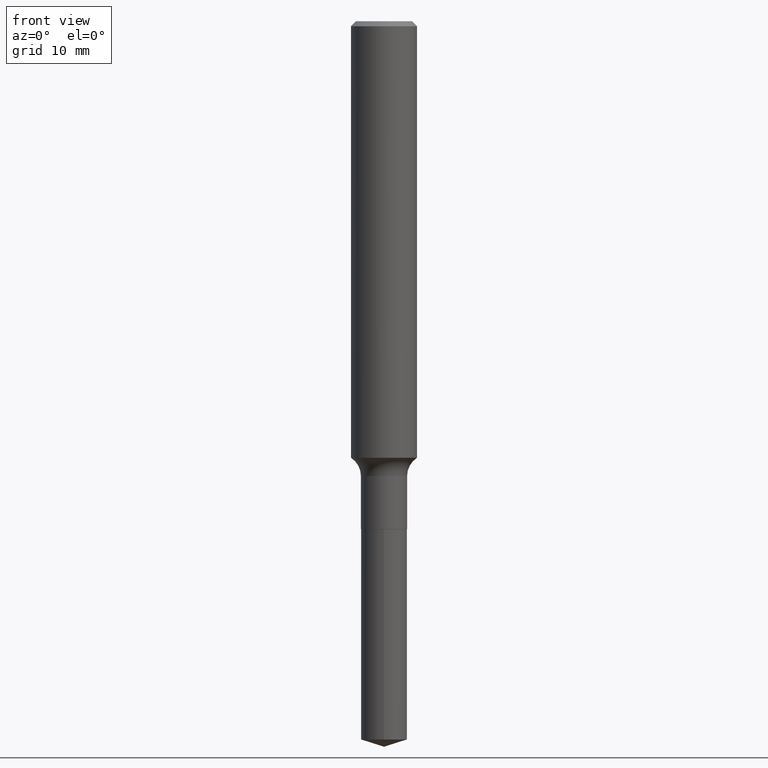
[diagram: clean part render]
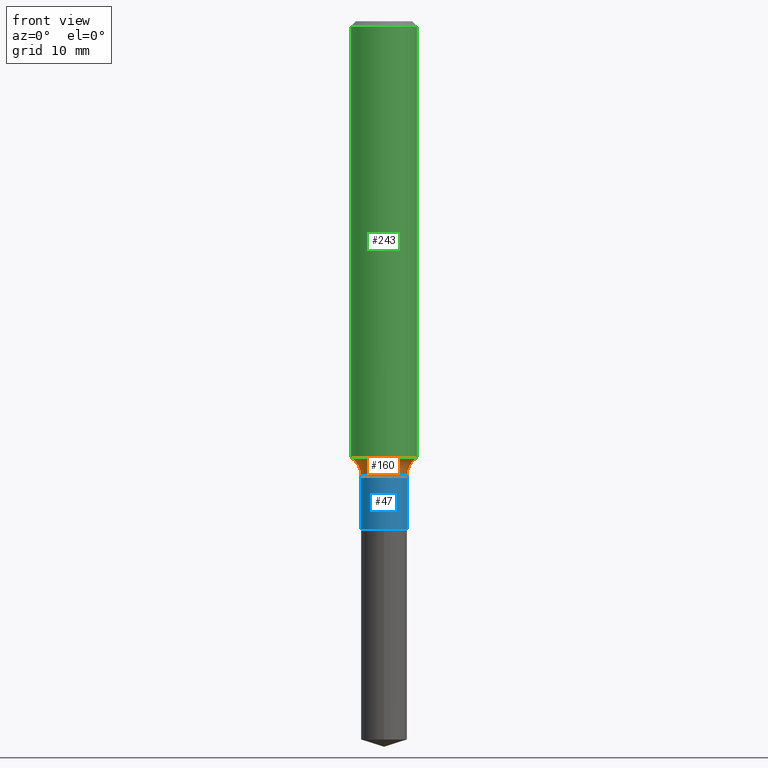
[diagram: same view with three faces highlighted in distinct colors, each labeled with its STEP entity id]
A machine part, front view with three faces highlighted in distinct colors.
Their STEP definitions:

[orange] entity #160 — the highlighted toroidal blend (fillet) surface has major radius 4.0818 mm and minor (blend) radius 1.9812 mm.
#3 = CIRCLE ( 'NONE', #130, 0.08269999999999998186 ) ;
#9 = AXIS2_PLACEMENT_3D ( 'NONE', #462, #126, #275 ) ;
#11 = EDGE_CURVE ( 'NONE', #90, #464, #86, .T. ) ;
#18 = VERTEX_POINT ( 'NONE', #123 ) ;
#39 = DIRECTION ( 'NONE',  ( 1.000000000000000000, -6.982962677686270655E-15, 0.000000000000000000 ) ) ;
#50 = CARTESIAN_POINT ( 'NONE',  ( 3.823149527577877642E-29, -5.458444285767998317E-15, -1.563360578514957355 ) ) ;
#51 = EDGE_LOOP ( 'NONE', ( #365, #85, #129, #170 ) ) ;
#54 = EDGE_CURVE ( 'NONE', #90, #18, #187, .T. ) ;
#61 = DIRECTION ( 'NONE',  ( -2.445468806185136597E-29, 3.491481338843145583E-15, 1.000000000000000000 ) ) ;
#69 = DIRECTION ( 'NONE',  ( 1.000000000000000000, -6.982962677686267499E-15, 4.883557194083113462E-29 ) ) ;
#75 = CARTESIAN_POINT ( 'NONE',  ( 0.1181000000000001354, -6.283132178002746580E-15, -1.563360578514957355 ) ) ;
#85 = ORIENTED_EDGE ( 'NONE', *, *, #54, .T. ) ;
#86 = CIRCLE ( 'NONE', #232, 0.1181000000000001632 ) ;
#90 = VERTEX_POINT ( 'NONE', #217 ) ;
#121 = DIRECTION ( 'NONE',  ( -6.982962677686266711E-15, -1.000000000000000000, 3.491481338843145583E-15 ) ) ;
#123 = CARTESIAN_POINT ( 'NONE',  ( -0.08269999999999998186, -5.430123819089499970E-15, -1.628699999999999815 ) ) ;
#126 = DIRECTION ( 'NONE',  ( 7.105427357601001859E-15, 1.000000000000000000, -3.491481338843145583E-15 ) ) ;
#129 = ORIENTED_EDGE ( 'NONE', *, *, #183, .T. ) ;
#130 = AXIS2_PLACEMENT_3D ( 'NONE', #320, #61, #475 ) ;
#140 = CIRCLE ( 'NONE', #304, 0.07799999999999999989 ) ;
#160 = ADVANCED_FACE ( 'NONE', ( #409 ), #239, .F. ) ;
#170 = ORIENTED_EDGE ( 'NONE', *, *, #325, .F. ) ;
#171 = AXIS2_PLACEMENT_3D ( 'NONE', #332, #216, #69 ) ;
#183 = EDGE_CURVE ( 'NONE', #18, #286, #3, .T. ) ;
#187 = CIRCLE ( 'NONE', #9, 0.07799999999999999989 ) ;
#208 = DIRECTION ( 'NONE',  ( -2.445468806185136597E-29, 3.491481338843145583E-15, 1.000000000000000000 ) ) ;
#216 = DIRECTION ( 'NONE',  ( -2.445468806185136597E-29, 3.491481338843145583E-15, 1.000000000000000000 ) ) ;
#217 = CARTESIAN_POINT ( 'NONE',  ( -0.1181000000000001354, -4.619293314835319331E-15, -1.563360578514957355 ) ) ;
#232 = AXIS2_PLACEMENT_3D ( 'NONE', #50, #208, #463 ) ;
#239 = TOROIDAL_SURFACE ( 'NONE', #171, 0.1607000000000000095, 0.07799999999999999989 ) ;
#275 = DIRECTION ( 'NONE',  ( -1.000000000000000000, 7.105427357600997914E-15, 0.000000000000000000 ) ) ;
#286 = VERTEX_POINT ( 'NONE', #361 ) ;
#304 = AXIS2_PLACEMENT_3D ( 'NONE', #457, #121, #39 ) ;
#320 = CARTESIAN_POINT ( 'NONE',  ( 3.982935044633731907E-29, -5.686575656573830550E-15, -1.628699999999999815 ) ) ;
#325 = EDGE_CURVE ( 'NONE', #464, #286, #140, .T. ) ;
#332 = CARTESIAN_POINT ( 'NONE',  ( 3.982935044633731907E-29, -5.686575656573830550E-15, -1.628699999999999815 ) ) ;
#361 = CARTESIAN_POINT ( 'NONE',  ( 0.08269999999999998186, -6.264066670018484441E-15, -1.628699999999999815 ) ) ;
#365 = ORIENTED_EDGE ( 'NONE', *, *, #11, .F. ) ;
#409 = FACE_OUTER_BOUND ( 'NONE', #51, .T. ) ;
#457 = CARTESIAN_POINT ( 'NONE',  ( 0.1607000000000000095, -6.808737758878013276E-15, -1.628699999999999815 ) ) ;
#462 = CARTESIAN_POINT ( 'NONE',  ( -0.1607000000000000095, -4.544733480207349878E-15, -1.628699999999999815 ) ) ;
#463 = DIRECTION ( 'NONE',  ( 1.000000000000000000, -6.982962677686263555E-15, 0.000000000000000000 ) ) ;
#464 = VERTEX_POINT ( 'NONE', #75 ) ;
#475 = DIRECTION ( 'NONE',  ( 1.000000000000000000, -6.982962677686262766E-15, 0.000000000000000000 ) ) ;

[blue] entity #47 — the highlighted cylindrical surface (edge-blend (fillet) strip) has radius 2.1006 mm, axis along (-0, 0, 1).
#3 = CIRCLE ( 'NONE', #130, 0.08269999999999998186 ) ;
#8 = DIRECTION ( 'NONE',  ( -2.445468806185136597E-29, 3.491481338843145583E-15, 1.000000000000000000 ) ) ;
#13 = DIRECTION ( 'NONE',  ( -2.445468806185136877E-29, 3.491481338843145188E-15, 1.000000000000000000 ) ) ;
#18 = VERTEX_POINT ( 'NONE', #123 ) ;
#33 = CIRCLE ( 'NONE', #81, 0.08269999999999998186 ) ;
#45 = CYLINDRICAL_SURFACE ( 'NONE', #124, 0.08269999999999998186 ) ;
#47 = ADVANCED_FACE ( 'NONE', ( #234 ), #45, .T. ) ;
#49 = EDGE_LOOP ( 'NONE', ( #292, #388, #396, #459 ) ) ;
#61 = DIRECTION ( 'NONE',  ( -2.445468806185136597E-29, 3.491481338843145583E-15, 1.000000000000000000 ) ) ;
#81 = AXIS2_PLACEMENT_3D ( 'NONE', #128, #155, #280 ) ;
#123 = CARTESIAN_POINT ( 'NONE',  ( -0.08269999999999998186, -5.430123819089499970E-15, -1.628699999999999815 ) ) ;
#124 = AXIS2_PLACEMENT_3D ( 'NONE', #200, #8, #305 ) ;
#128 = CARTESIAN_POINT ( 'NONE',  ( 4.446840477167052112E-29, -6.348909666552375037E-15, -1.818400000000000016 ) ) ;
#130 = AXIS2_PLACEMENT_3D ( 'NONE', #320, #61, #475 ) ;
#155 = DIRECTION ( 'NONE',  ( -2.445468806185136597E-29, 3.491481338843145583E-15, 1.000000000000000000 ) ) ;
#183 = EDGE_CURVE ( 'NONE', #18, #286, #3, .T. ) ;
#200 = CARTESIAN_POINT ( 'NONE',  ( 0.000000000000000000, 0.000000000000000000, 0.000000000000000000 ) ) ;
#201 = VERTEX_POINT ( 'NONE', #257 ) ;
#218 = EDGE_CURVE ( 'NONE', #201, #286, #483, .T. ) ;
#234 = FACE_OUTER_BOUND ( 'NONE', #49, .T. ) ;
#257 = CARTESIAN_POINT ( 'NONE',  ( 0.08269999999999998186, -6.926400679997028928E-15, -1.818400000000000016 ) ) ;
#280 = DIRECTION ( 'NONE',  ( 1.000000000000000000, -6.982962677686262766E-15, 0.000000000000000000 ) ) ;
#281 = VECTOR ( 'NONE', #13, 39.37007874015748143 ) ;
#286 = VERTEX_POINT ( 'NONE', #361 ) ;
#292 = ORIENTED_EDGE ( 'NONE', *, *, #394, .F. ) ;
#305 = DIRECTION ( 'NONE',  ( 1.000000000000000000, -6.982962677686267499E-15, 4.876176775795936353E-29 ) ) ;
#307 = CARTESIAN_POINT ( 'NONE',  ( -0.08269999999999998186, 5.876188424736027248E-16, -4.067959319640806203E-30 ) ) ;
#312 = DIRECTION ( 'NONE',  ( -2.445468806185136877E-29, 3.491481338843145188E-15, 1.000000000000000000 ) ) ;
#320 = CARTESIAN_POINT ( 'NONE',  ( 3.982935044633731907E-29, -5.686575656573830550E-15, -1.628699999999999815 ) ) ;
#346 = CARTESIAN_POINT ( 'NONE',  ( 0.08269999999999998186, -5.774910134446541868E-16, 4.032598193583238570E-30 ) ) ;
#361 = CARTESIAN_POINT ( 'NONE',  ( 0.08269999999999998186, -6.264066670018484441E-15, -1.628699999999999815 ) ) ;
#378 = CARTESIAN_POINT ( 'NONE',  ( -0.08269999999999998186, -5.430123819089499970E-15, -1.818400000000000016 ) ) ;
#379 = LINE ( 'NONE', #307, #281 ) ;
#388 = ORIENTED_EDGE ( 'NONE', *, *, #492, .T. ) ;
#393 = VERTEX_POINT ( 'NONE', #378 ) ;
#394 = EDGE_CURVE ( 'NONE', #393, #18, #379, .T. ) ;
#396 = ORIENTED_EDGE ( 'NONE', *, *, #218, .T. ) ;
#427 = VECTOR ( 'NONE', #312, 39.37007874015748143 ) ;
#459 = ORIENTED_EDGE ( 'NONE', *, *, #183, .F. ) ;
#475 = DIRECTION ( 'NONE',  ( 1.000000000000000000, -6.982962677686262766E-15, 0.000000000000000000 ) ) ;
#483 = LINE ( 'NONE', #346, #427 ) ;
#492 = EDGE_CURVE ( 'NONE', #393, #201, #33, .T. ) ;

[green] entity #243 — the highlighted cylindrical surface (edge-blend (fillet) strip) has radius 2.9997 mm, axis along (-0, 0, 1).
#11 = EDGE_CURVE ( 'NONE', #90, #464, #86, .T. ) ;
#38 = EDGE_CURVE ( 'NONE', #464, #349, #424, .T. ) ;
#48 = DIRECTION ( 'NONE',  ( 1.000000000000000000, -6.982962677686266711E-15, 0.000000000000000000 ) ) ;
#50 = CARTESIAN_POINT ( 'NONE',  ( 3.823149527577877642E-29, -5.458444285767998317E-15, -1.563360578514957355 ) ) ;
#67 = CARTESIAN_POINT ( 'NONE',  ( -0.1181000000000000799, 8.391509709326788873E-16, -5.809262341591047988E-30 ) ) ;
#73 = CARTESIAN_POINT ( 'NONE',  ( 0.1180999999999999966, -8.865394841523547570E-16, -0.01771500000000010913 ) ) ;
#75 = CARTESIAN_POINT ( 'NONE',  ( 0.1181000000000001354, -6.283132178002746580E-15, -1.563360578514957355 ) ) ;
#78 = EDGE_CURVE ( 'NONE', #90, #152, #262, .T. ) ;
#80 = VECTOR ( 'NONE', #410, 39.37007874015748143 ) ;
#83 = DIRECTION ( 'NONE',  ( -2.445468806185136877E-29, 3.491481338843145188E-15, 1.000000000000000000 ) ) ;
#86 = CIRCLE ( 'NONE', #232, 0.1181000000000001632 ) ;
#90 = VERTEX_POINT ( 'NONE', #217 ) ;
#91 = FACE_OUTER_BOUND ( 'NONE', #362, .T. ) ;
#95 = DIRECTION ( 'NONE',  ( -2.445468806185136597E-29, 3.491481338843145583E-15, 1.000000000000000000 ) ) ;
#125 = CIRCLE ( 'NONE', #401, 0.1180999999999999966 ) ;
#152 = VERTEX_POINT ( 'NONE', #253 ) ;
#162 = CARTESIAN_POINT ( 'NONE',  ( 0.000000000000000000, 0.000000000000000000, 0.000000000000000000 ) ) ;
#208 = DIRECTION ( 'NONE',  ( -2.445468806185136597E-29, 3.491481338843145583E-15, 1.000000000000000000 ) ) ;
#212 = VECTOR ( 'NONE', #83, 39.37007874015748143 ) ;
#214 = AXIS2_PLACEMENT_3D ( 'NONE', #162, #95, #397 ) ;
#217 = CARTESIAN_POINT ( 'NONE',  ( -0.1181000000000001354, -4.619293314835319331E-15, -1.563360578514957355 ) ) ;
#230 = DIRECTION ( 'NONE',  ( -2.445468806185136597E-29, 3.491481338843145583E-15, 1.000000000000000000 ) ) ;
#232 = AXIS2_PLACEMENT_3D ( 'NONE', #50, #208, #463 ) ;
#243 = ADVANCED_FACE ( 'NONE', ( #91 ), #453, .T. ) ;
#244 = ORIENTED_EDGE ( 'NONE', *, *, #376, .F. ) ;
#253 = CARTESIAN_POINT ( 'NONE',  ( -0.1180999999999999966, -1.920996967910122878E-15, -0.01771500000000010913 ) ) ;
#262 = LINE ( 'NONE', #67, #80 ) ;
#265 = ORIENTED_EDGE ( 'NONE', *, *, #11, .T. ) ;
#278 = CARTESIAN_POINT ( 'NONE',  ( 0.1181000000000000799, -8.246878922347486570E-16, 5.758764772215004644E-30 ) ) ;
#282 = ORIENTED_EDGE ( 'NONE', *, *, #78, .F. ) ;
#313 = ORIENTED_EDGE ( 'NONE', *, *, #38, .T. ) ;
#349 = VERTEX_POINT ( 'NONE', #73 ) ;
#362 = EDGE_LOOP ( 'NONE', ( #282, #265, #313, #244 ) ) ;
#376 = EDGE_CURVE ( 'NONE', #152, #349, #125, .T. ) ;
#397 = DIRECTION ( 'NONE',  ( 1.000000000000000000, -6.982962677686266711E-15, 4.876176775795936353E-29 ) ) ;
#401 = AXIS2_PLACEMENT_3D ( 'NONE', #448, #230, #48 ) ;
#410 = DIRECTION ( 'NONE',  ( -2.445468806185136877E-29, 3.491481338843145188E-15, 1.000000000000000000 ) ) ;
#424 = LINE ( 'NONE', #278, #212 ) ;
#448 = CARTESIAN_POINT ( 'NONE',  ( 4.332147990156996744E-31, -6.185159191760670395E-17, -0.01771500000000010913 ) ) ;
#453 = CYLINDRICAL_SURFACE ( 'NONE', #214, 0.1181000000000000799 ) ;
#463 = DIRECTION ( 'NONE',  ( 1.000000000000000000, -6.982962677686263555E-15, 0.000000000000000000 ) ) ;
#464 = VERTEX_POINT ( 'NONE', #75 ) ;